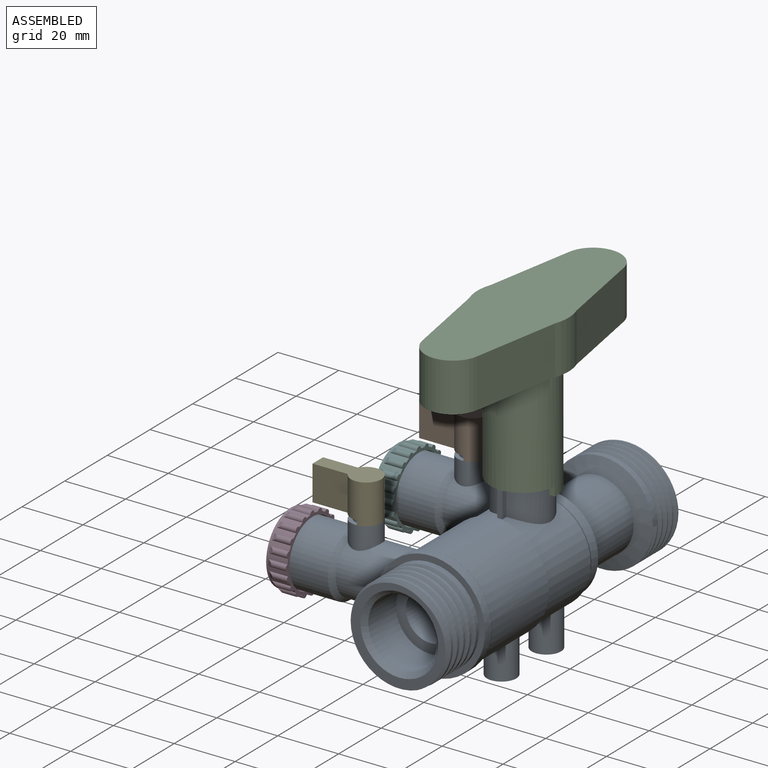
[diagram: assembled view]
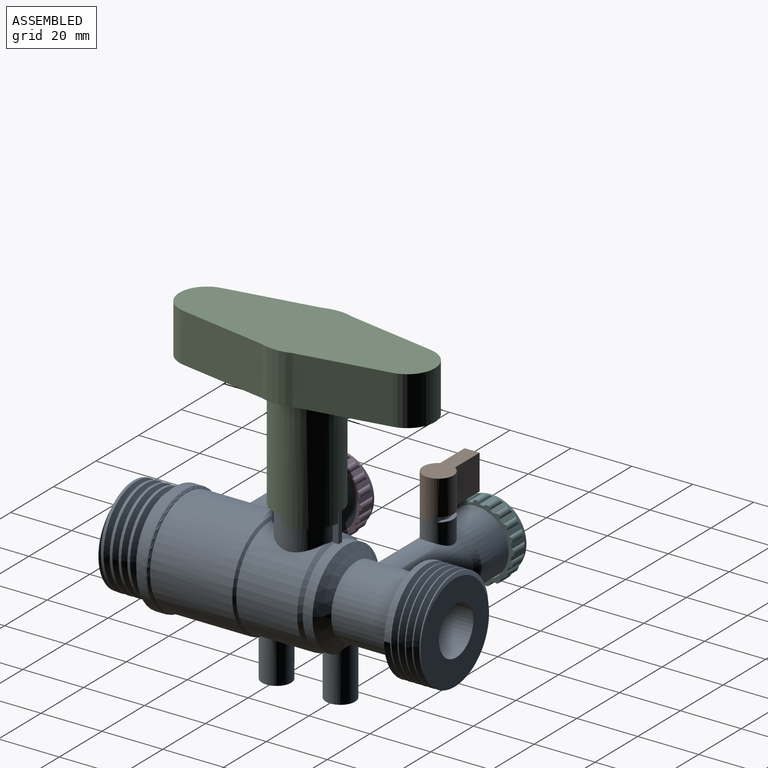
[diagram: assembled view, second angle]
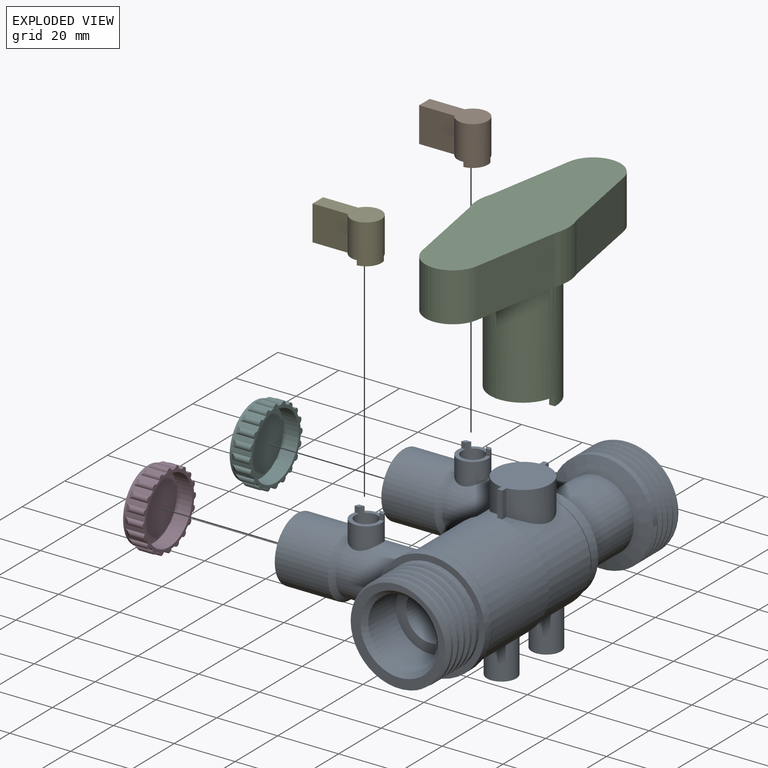
[diagram: exploded view]
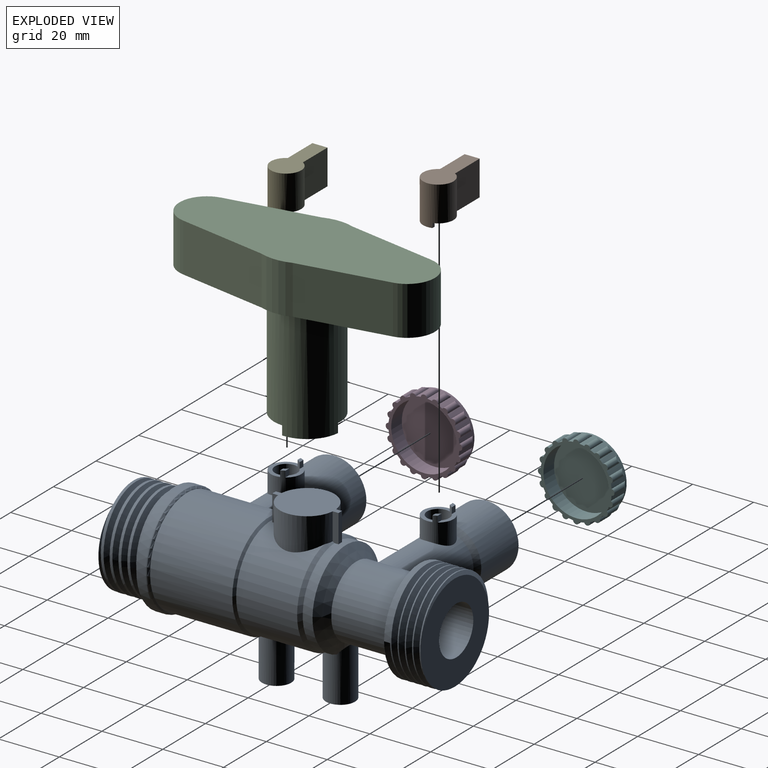
[diagram: exploded view, second angle]
ASSEMBLY  parts=6 mates=5
PART A: 80 faces, bbox 74.7x110.4x56.2 mm
  f0: cone r=15.5mm half-angle=30deg, axis (0,-1,0), area 67.1mm2, adj f1,f70,f71,f72,f73
  f1: cylinder r=16.5mm len=33mm, axis (0,-1,0), area 1745.9mm2, adj f0,f2,f6,f7,f8,f9,f10,f69
  f2: cone r=15.5mm half-angle=30deg, axis (0,-1,0), area 67.1mm2, adj f1,f3,f6,f72,f73
  f3: plane 9.27x1.92mm, normal (-1,0,0), area 17.7mm2, adj f2,f4,f5,f6,f72
  f4: plane 9.27x1.65mm, normal (0,1,0), area 15.3mm2, adj f3,f5,f71,f72
  f5: plane 21.76x18mm, normal (0,0,1), area 260.7mm2, adj f3,f4,f6,f7,f8,f9,f70,f71
  f6: cylinder r=9mm len=17.92mm, axis (0,0,-1), area 263.9mm2, adj f1,f2,f3,f5,f7
  f7: plane 8.52x1.92mm, normal (-1,0,0), area 16.3mm2, adj f1,f5,f6,f8
  f8: plane 8.52x1.65mm, normal (0,-1,0), area 14mm2, adj f1,f5,f7,f9
  f9: plane 8.52x1.92mm, normal (1,0,0), area 16.3mm2, adj f1,f5,f8,f70
  f10: cylinder r=4.82mm len=14.22mm, axis (0,0,1), area 417.4mm2, adj f1,f11,f64,f69
  f11: cylinder r=17.25mm len=34.5mm, axis (0,-1,0), area 2647.4mm2, adj f10,f12,f63,f69
  f12: cylinder r=9mm len=20.28mm, axis (1,0,0), area 998.1mm2, adj f11,f13,f24
  f13: cylinder r=5mm len=10mm, axis (0,0,-1), area 213.6mm2, adj f12,f14,f17,f18,f19,f20,f21,f22
  f14: plane 2x1.41mm, normal (0,-1,0), area 2.8mm2, adj f13,f15,f17,f23
  f15: cylinder r=3.67mm len=8.78mm, axis (0,0,-1), area 153.9mm2, adj f14,f16,f17,f18,f19,f20,f21,f22
  f16: cylinder r=9mm len=7.34mm, axis (1,0,0), area 43.3mm2, adj f15
  f17: plane 2.36x1.33mm, normal (0,0,1), area 2.1mm2, adj f13,f14,f15,f18
  f18: plane 2x1.74mm, normal (0,1,0), area 3.5mm2, adj f13,f15,f17,f19
  f19: plane 8.36x2.25mm, normal (0,0,1), area 10.2mm2, adj f13,f15,f18,f20
  f20: plane 2x1.74mm, normal (0,1,0), area 3.5mm2, adj f13,f15,f19,f21
  f21: plane 2.36x1.33mm, normal (0,0,1), area 2.1mm2, adj f13,f15,f20,f22
  f22: plane 2x1.41mm, normal (0,-1,0), area 2.8mm2, adj f13,f15,f21,f23
  f23: plane 10x6.42mm, normal (0,0,1), area 22mm2, adj f13,f14,f15,f22
  f24: cone r=10.5mm half-angle=45deg, axis (-1,0,0), area 121.3mm2, adj f12,f13,f25
  f25: cylinder r=10.5mm len=21mm, axis (1,0,0), area 1154.5mm2, adj f24,f26
  f26: plane 21x21mm, normal (-1,0,0), area 240mm2, adj f25,f27
  f27: cylinder r=5.82mm len=48.51mm, axis (1,0,0), area 1726.5mm2, adj f26,f28
  f28: cylinder r=8mm len=92.5mm, axis (0,-1,0), area 4418.8mm2, adj f27,f29,f52,f53
  f29: plane 33.34x33.32mm, normal (0,1,0), area 607mm2, adj f28,f30,f50,f51
  f30: cylinder r=16.75mm len=33.5mm, axis (0,-1,0), area 299.3mm2, adj f29,f31,f32,f50,f51
  f31: plane 2x1.73mm, normal (0,0,-1), area 1.7mm2, adj f30,f50,f51
  f32: cone r=16.75mm half-angle=70deg, axis (0,1,0), area 476.4mm2, adj f30,f33
  f33: cylinder r=11.75mm len=23.5mm, axis (0,-1,0), area 1169.1mm2, adj f32,f34,f35
  f34: cone r=10.75mm half-angle=50deg, axis (0,-1,0), area 357.7mm2, adj f33,f35,f72,f73
  f35: cylinder r=9mm len=27.45mm, axis (1,0,0), area 1303.7mm2, adj f33,f34,f36,f47,f72
  f36: cylinder r=5mm len=10mm, axis (0,0,-1), area 213.6mm2, adj f35,f37,f40,f41,f42,f43,f44,f45
  f37: plane 2x1.41mm, normal (0,-1,0), area 2.8mm2, adj f36,f38,f40,f46
  f38: cylinder r=3.67mm len=8.78mm, axis (0,0,-1), area 153.9mm2, adj f37,f39,f40,f41,f42,f43,f44,f45
  f39: cylinder r=9mm len=7.34mm, axis (1,0,0), area 43.3mm2, adj f38
  f40: plane 2.36x1.33mm, normal (0,0,1), area 2.1mm2, adj f36,f37,f38,f41
  f41: plane 2x1.74mm, normal (0,1,0), area 3.5mm2, adj f36,f38,f40,f42
  f42: plane 8.36x2.25mm, normal (0,0,1), area 10.2mm2, adj f36,f38,f41,f43
  f43: plane 2x1.74mm, normal (0,1,0), area 3.5mm2, adj f36,f38,f42,f44
  f44: plane 2.36x1.33mm, normal (0,0,1), area 2.1mm2, adj f36,f38,f43,f45
  f45: plane 2x1.41mm, normal (0,-1,0), area 2.8mm2, adj f36,f38,f44,f46
  f46: plane 10x6.42mm, normal (0,0,1), area 22mm2, adj f36,f37,f38,f45
  f47: cone r=10.5mm half-angle=45deg, axis (-1,0,0), area 121.3mm2, adj f35,f36,f48
  f48: cylinder r=10.5mm len=21mm, axis (1,0,0), area 1154.5mm2, adj f47,f49
  f49: plane 21x21mm, normal (-1,0,0), area 240mm2, adj f48,f52
  f50: bspline ~38.68x33.5mm, area 956.6mm2, adj f29,f30,f31,f51
  f51: bspline ~38.68x33.5mm, area 873.6mm2, adj f29,f30,f31,f50
  f52: cylinder r=5.82mm len=48.51mm, axis (1,0,0), area 1726.5mm2, adj f28,f49
  f53: plane 22.5x22.5mm, normal (0,-1,0), area 196.5mm2, adj f28,f54
  f54: cylinder r=11.25mm len=22.5mm, axis (0,1,0), area 918.9mm2, adj f53,f55
  f55: cone r=11.25mm half-angle=45deg, axis (0,-1,0), area 159.9mm2, adj f54,f56
  f56: plane 32.15x31.85mm, normal (0,-1,0), area 235.7mm2, adj f55,f57,f61,f62
  f57: cylinder r=16mm len=32mm, axis (0,1,0), area 528.4mm2, adj f56,f58,f59,f61,f62
  f58: plane 2x1.73mm, normal (0,0,-1), area 1.7mm2, adj f57,f61,f62
  f59: plane 36x36mm, normal (0,-1,0), area 213.6mm2, adj f57,f60
  f60: cylinder r=18mm len=36mm, axis (0,-1,0), area 342.9mm2, adj f59,f63
  f61: bspline ~36.95x32mm, area 918.2mm2, adj f56,f57,f58,f62
  f62: bspline ~36.95x32mm, area 852.5mm2, adj f56,f57,f58,f61
  f63: torus R=17mm, axis (0,1,0), area 146.9mm2, adj f11,f60
  f64: plane 9.64x9.64mm, normal (0,0,-1), area 47mm2, adj f10,f65
  f65: cylinder r=2.87mm len=13.75mm, axis (0,0,1), area 243.6mm2, adj f64,f66,f67,f68
  f66: cylinder r=16.5mm len=5.75mm, axis (0,-1,0), area 22.1mm2, adj f65,f67
  f67: cone r=16.25mm half-angle=45deg, axis (0,-1,0), area 4mm2, adj f65,f66,f68
  f68: cylinder r=17.25mm len=2.95mm, axis (0,-1,0), area 0mm2, adj f65,f67
  f69: cone r=16.25mm half-angle=45deg, axis (0,-1,0), area 103.2mm2, adj f1,f10,f11
  f70: cylinder r=9mm len=17.92mm, axis (0,0,-1), area 263.9mm2, adj f0,f1,f5,f9,f71
  f71: plane 9.27x1.92mm, normal (1,0,0), area 17.7mm2, adj f0,f4,f5,f70,f72
  f72: cylinder r=15.75mm len=31.5mm, axis (0,-1,0), area 287.3mm2, adj f0,f2,f3,f4,f34,f35,f71,f73
  f73: cylinder r=4.82mm len=17.8mm, axis (0,0,1), area 463.7mm2, adj f0,f1,f2,f34,f72,f74
  f74: plane 9.64x9.64mm, normal (0,0,-1), area 47mm2, adj f73,f75
  f75: cylinder r=2.87mm len=15.48mm, axis (0,0,1), area 260.5mm2, adj f74,f76,f77,f78,f79
  f76: cone r=10.75mm half-angle=50deg, axis (0,-1,0), area 4.9mm2, adj f75,f79
  f77: cylinder r=16.5mm len=1.98mm, axis (0,-1,0), area 0mm2, adj f75,f78
  f78: cone r=15.5mm half-angle=30deg, axis (0,-1,0), area 5.3mm2, adj f75,f77,f79
  f79: cylinder r=15.75mm len=5.75mm, axis (0,-1,0), area 17.3mm2, adj f75,f76,f78
PART B: 14 faces, bbox 20.9x10x13 mm
  f0: plane 20.7x10mm, normal (0,0,-1), area 42.7mm2, adj f1,f3,f4,f5,f6,f8,f9,f10
  f1: cylinder r=5mm len=13mm, axis (0,0,-1), area 315.2mm2, adj f0,f2,f4,f5,f11,f12,f13
  f2: plane 20.9x10mm, normal (0,0,1), area 133.4mm2, adj f1,f3,f4,f5
  f3: plane 11.5x4.94mm, normal (-1,0,0), area 56.8mm2, adj f0,f2,f4,f5
  f4: plane 11.55x11.5mm, normal (0,-1,0), area 132.9mm2, adj f0,f1,f2,f3
  f5: plane 11.55x11.5mm, normal (0,1,0), area 132.9mm2, adj f0,f1,f2,f3
  f6: cylinder r=4mm len=12mm, axis (0,0,-1), area 243.3mm2, adj f0,f7,f9,f10,f11,f12,f13
  f7: plane 18.9x8mm, normal (0,0,-1), area 82.6mm2, adj f6,f8,f9,f10
  f8: plane 10.5x2.94mm, normal (1,0,0), area 30.9mm2, adj f0,f7,f9,f10
  f9: plane 11.18x10.5mm, normal (0,1,0), area 117.4mm2, adj f0,f6,f7,f8
  f10: plane 11.18x10.5mm, normal (0,-1,0), area 117.4mm2, adj f0,f6,f7,f8
  f11: plane 1.5x1mm, normal (-1,0,0), area 1.5mm2, adj f0,f1,f6,f13
  f12: plane 1.5x1.05mm, normal (0,1,0), area 1.6mm2, adj f0,f1,f6,f13
  f13: plane 6.4x4.61mm, normal (0,0,-1), area 8.1mm2, adj f1,f6,f11,f12
PART C: 16 faces, bbox 30x83.9x54 mm
  f0: plane 21.76x21.74mm, normal (0,0,-1), area 343.3mm2, adj f2,f12,f13,f14
  f1: cylinder r=15mm len=16mm, axis (0,0,1), area 167.6mm2, adj f6,f7,f8,f9
  f2: cylinder r=10.88mm len=38mm, axis (0,0,-1), area 2442.7mm2, adj f0,f7,f12,f14,f15
  f3: cylinder r=15mm len=16mm, axis (0,0,1), area 167.6mm2, adj f4,f7,f8,f11
  f4: plane 29.34x16mm, normal (0.98,0.17,0), area 476.6mm2, adj f3,f5,f7,f8
  f5: cylinder r=9.06mm len=17.84mm, axis (0,0,1), area 404.8mm2, adj f4,f6,f7,f8
  f6: plane 29.34x16mm, normal (-0.98,0.17,0), area 476.6mm2, adj f1,f5,f7,f8
  f7: plane 83.91x30mm, normal (0,0,-1), area 1481.5mm2, adj f1,f2,f3,f4,f5,f6,f9,f10
  f8: plane 83.91x30mm, normal (0,0,1), area 1853.4mm2, adj f1,f3,f4,f5,f6,f9,f10,f11
  f9: plane 29.34x16mm, normal (-0.98,-0.17,0), area 476.6mm2, adj f1,f7,f8,f10
  f10: cylinder r=9.06mm len=17.84mm, axis (0,0,1), area 404.8mm2, adj f7,f8,f9,f11
  f11: plane 29.34x16mm, normal (0.98,-0.17,0), area 476.6mm2, adj f3,f7,f8,f10
  f12: plane 3x1.88mm, normal (0,-1,0), area 5.7mm2, adj f0,f2,f13,f15
  f13: cylinder r=9mm len=9.54mm, axis (0,0,1), area 41.2mm2, adj f0,f12,f14,f15
  f14: plane 3x1.89mm, normal (-1,0,0), area 5.7mm2, adj f0,f2,f13,f15
  f15: plane 11.43x9.88mm, normal (0,0,-1), area 28.6mm2, adj f2,f12,f13,f14
PART D: 85 faces, bbox 7x25.1x25.1 mm
  f0: cylinder r=11.67mm len=23.35mm, axis (1,0,0), area 257.5mm2, adj f1,f3,f6,f7,f8,f10,f11,f12
  f1: plane 23.35x23.35mm, normal (-1,0,0), area 428.1mm2, adj f0
  f2: cylinder r=10.77mm len=21.54mm, axis (-1,0,0), area 338.4mm2, adj f3,f4
  f3: plane 25.13x25.13mm, normal (1,0,0), area 92mm2, adj f0,f2,f5,f7,f8,f9,f10,f11
  f4: plane 21.54x21.54mm, normal (1,0,0), area 364.4mm2, adj f2
  f5: cylinder r=12.56mm len=4.74mm, axis (-1,0,0), area 0.2mm2, adj f3,f6,f7,f8
  f6: cone r=11.56mm half-angle=30deg, axis (1,0,0), area 2.8mm2, adj f0,f5,f7,f8
  f7: cylinder r=1mm len=6.28mm, axis (-1,0,0), area 8mm2, adj f0,f3,f5,f6
  f8: cylinder r=1mm len=6.28mm, axis (-1,0,0), area 8mm2, adj f0,f3,f5,f6
  f9: cylinder r=12.56mm len=4.74mm, axis (-1,0,0), area 0.2mm2, adj f3,f10,f11,f12
  f10: cylinder r=1mm len=6.28mm, axis (-1,0,0), area 8mm2, adj f0,f3,f9,f12
  f11: cylinder r=1mm len=6.28mm, axis (-1,0,0), area 8mm2, adj f0,f3,f9,f12
  f12: cone r=11.56mm half-angle=30deg, axis (1,0,0), area 2.8mm2, adj f0,f9,f10,f11
  f13: cylinder r=12.56mm len=4.74mm, axis (-1,0,0), area 0.2mm2, adj f3,f14,f15,f16
  f14: cylinder r=1mm len=6.28mm, axis (-1,0,0), area 8mm2, adj f0,f3,f13,f16
  f15: cylinder r=1mm len=6.28mm, axis (-1,0,0), area 8mm2, adj f0,f3,f13,f16
  f16: cone r=11.56mm half-angle=30deg, axis (1,0,0), area 2.8mm2, adj f0,f13,f14,f15
  f17: cylinder r=12.56mm len=4.74mm, axis (-1,0,0), area 0.2mm2, adj f3,f18,f19,f20
  f18: cylinder r=1mm len=6.28mm, axis (-1,0,0), area 8mm2, adj f0,f3,f17,f20
  f19: cylinder r=1mm len=6.28mm, axis (-1,0,0), area 8mm2, adj f0,f3,f17,f20
  f20: cone r=11.56mm half-angle=30deg, axis (1,0,0), area 2.8mm2, adj f0,f17,f18,f19
  f21: cylinder r=12.56mm len=4.74mm, axis (-1,0,0), area 0.2mm2, adj f3,f22,f23,f24
  f22: cylinder r=1mm len=6.28mm, axis (-1,0,0), area 8mm2, adj f0,f3,f21,f24
  f23: cylinder r=1mm len=6.28mm, axis (-1,0,0), area 8mm2, adj f0,f3,f21,f24
  f24: cone r=11.56mm half-angle=30deg, axis (1,0,0), area 2.8mm2, adj f0,f21,f22,f23
  f25: cylinder r=12.56mm len=4.74mm, axis (-1,0,0), area 0.2mm2, adj f3,f26,f27,f28
  f26: cylinder r=1mm len=6.28mm, axis (-1,0,0), area 8mm2, adj f0,f3,f25,f28
  f27: cylinder r=1mm len=6.28mm, axis (-1,0,0), area 8mm2, adj f0,f3,f25,f28
  f28: cone r=11.56mm half-angle=30deg, axis (1,0,0), area 2.8mm2, adj f0,f25,f26,f27
  f29: cylinder r=12.56mm len=4.74mm, axis (-1,0,0), area 0.2mm2, adj f3,f30,f31,f32
  f30: cylinder r=1mm len=6.28mm, axis (-1,0,0), area 8mm2, adj f0,f3,f29,f32
  f31: cylinder r=1mm len=6.28mm, axis (-1,0,0), area 8mm2, adj f0,f3,f29,f32
  f32: cone r=11.56mm half-angle=30deg, axis (1,0,0), area 2.8mm2, adj f0,f29,f30,f31
  f33: cylinder r=12.56mm len=4.74mm, axis (-1,0,0), area 0.2mm2, adj f3,f34,f35,f36
  f34: cylinder r=1mm len=6.28mm, axis (-1,0,0), area 8mm2, adj f0,f3,f33,f36
  f35: cylinder r=1mm len=6.28mm, axis (-1,0,0), area 8mm2, adj f0,f3,f33,f36
  f36: cone r=11.56mm half-angle=30deg, axis (1,0,0), area 2.8mm2, adj f0,f33,f34,f35
  f37: cylinder r=12.56mm len=4.74mm, axis (-1,0,0), area 0.2mm2, adj f3,f38,f39,f40
  f38: cylinder r=1mm len=6.28mm, axis (-1,0,0), area 8mm2, adj f0,f3,f37,f40
  f39: cylinder r=1mm len=6.28mm, axis (-1,0,0), area 8mm2, adj f0,f3,f37,f40
  f40: cone r=11.56mm half-angle=30deg, axis (1,0,0), area 2.8mm2, adj f0,f37,f38,f39
  f41: cylinder r=12.56mm len=4.74mm, axis (-1,0,0), area 0.2mm2, adj f3,f42,f43,f44
  f42: cylinder r=1mm len=6.28mm, axis (-1,0,0), area 8mm2, adj f0,f3,f41,f44
  f43: cylinder r=1mm len=6.28mm, axis (-1,0,0), area 8mm2, adj f0,f3,f41,f44
  f44: cone r=11.56mm half-angle=30deg, axis (1,0,0), area 2.8mm2, adj f0,f41,f42,f43
  f45: cylinder r=12.56mm len=4.74mm, axis (-1,0,0), area 0.2mm2, adj f3,f46,f47,f48
  f46: cone r=11.56mm half-angle=30deg, axis (1,0,0), area 2.8mm2, adj f0,f45,f47,f48
  f47: cylinder r=1mm len=6.28mm, axis (-1,0,0), area 8mm2, adj f0,f3,f45,f46
  f48: cylinder r=1mm len=6.28mm, axis (-1,0,0), area 8mm2, adj f0,f3,f45,f46
  f49: cylinder r=12.56mm len=4.74mm, axis (-1,0,0), area 0.2mm2, adj f3,f50,f51,f52
  f50: cone r=11.56mm half-angle=30deg, axis (1,0,0), area 2.8mm2, adj f0,f49,f51,f52
  f51: cylinder r=1mm len=6.28mm, axis (-1,0,0), area 8mm2, adj f0,f3,f49,f50
  f52: cylinder r=1mm len=6.28mm, axis (-1,0,0), area 8mm2, adj f0,f3,f49,f50
  f53: cylinder r=12.56mm len=4.74mm, axis (-1,0,0), area 0.2mm2, adj f3,f54,f55,f56
  f54: cone r=11.56mm half-angle=30deg, axis (1,0,0), area 2.8mm2, adj f0,f53,f55,f56
  f55: cylinder r=1mm len=6.28mm, axis (-1,0,0), area 8mm2, adj f0,f3,f53,f54
  f56: cylinder r=1mm len=6.28mm, axis (-1,0,0), area 8mm2, adj f0,f3,f53,f54
  f57: cylinder r=12.56mm len=4.74mm, axis (-1,0,0), area 0.2mm2, adj f3,f58,f59,f60
  f58: cone r=11.56mm half-angle=30deg, axis (1,0,0), area 2.8mm2, adj f0,f57,f59,f60
  f59: cylinder r=1mm len=6.28mm, axis (-1,0,0), area 8mm2, adj f0,f3,f57,f58
  f60: cylinder r=1mm len=6.28mm, axis (-1,0,0), area 8mm2, adj f0,f3,f57,f58
  f61: cylinder r=12.56mm len=4.74mm, axis (-1,0,0), area 0.2mm2, adj f3,f62,f63,f64
  f62: cone r=11.56mm half-angle=30deg, axis (1,0,0), area 2.8mm2, adj f0,f61,f63,f64
  f63: cylinder r=1mm len=6.28mm, axis (-1,0,0), area 8mm2, adj f0,f3,f61,f62
  f64: cylinder r=1mm len=6.28mm, axis (-1,0,0), area 8mm2, adj f0,f3,f61,f62
  f65: cylinder r=12.56mm len=4.74mm, axis (-1,0,0), area 0.2mm2, adj f3,f66,f67,f68
  f66: cone r=11.56mm half-angle=30deg, axis (1,0,0), area 2.8mm2, adj f0,f65,f67,f68
  f67: cylinder r=1mm len=6.28mm, axis (-1,0,0), area 8mm2, adj f0,f3,f65,f66
  f68: cylinder r=1mm len=6.28mm, axis (-1,0,0), area 8mm2, adj f0,f3,f65,f66
  f69: cylinder r=12.56mm len=4.74mm, axis (-1,0,0), area 0.2mm2, adj f3,f70,f71,f72
  f70: cone r=11.56mm half-angle=30deg, axis (1,0,0), area 2.8mm2, adj f0,f69,f71,f72
  f71: cylinder r=1mm len=6.28mm, axis (-1,0,0), area 8mm2, adj f0,f3,f69,f70
  f72: cylinder r=1mm len=6.28mm, axis (-1,0,0), area 8mm2, adj f0,f3,f69,f70
  f73: cylinder r=12.56mm len=4.74mm, axis (-1,0,0), area 0.2mm2, adj f3,f74,f75,f76
  f74: cone r=11.56mm half-angle=30deg, axis (1,0,0), area 2.8mm2, adj f0,f73,f75,f76
  f75: cylinder r=1mm len=6.28mm, axis (-1,0,0), area 8mm2, adj f0,f3,f73,f74
  f76: cylinder r=1mm len=6.28mm, axis (-1,0,0), area 8mm2, adj f0,f3,f73,f74
  f77: cylinder r=12.56mm len=4.74mm, axis (-1,0,0), area 0.2mm2, adj f3,f78,f79,f80
  f78: cone r=11.56mm half-angle=30deg, axis (1,0,0), area 2.8mm2, adj f0,f77,f79,f80
  f79: cylinder r=1mm len=6.28mm, axis (-1,0,0), area 8mm2, adj f0,f3,f77,f78
  f80: cylinder r=1mm len=6.28mm, axis (-1,0,0), area 8mm2, adj f0,f3,f77,f78
  f81: cylinder r=12.56mm len=4.74mm, axis (-1,0,0), area 0.2mm2, adj f3,f82,f83,f84
  f82: cone r=11.56mm half-angle=30deg, axis (1,0,0), area 2.8mm2, adj f0,f81,f83,f84
  f83: cylinder r=1mm len=6.28mm, axis (-1,0,0), area 8mm2, adj f0,f3,f81,f82
  f84: cylinder r=1mm len=6.28mm, axis (-1,0,0), area 8mm2, adj f0,f3,f81,f82
PART E: same geometry as B
PART F: 85 faces, bbox 7x25.1x25.1 mm
  f0: cylinder r=11.67mm len=23.35mm, axis (1,0,0), area 257.5mm2, adj f1,f3,f6,f7,f8,f10,f11,f12
  f1: plane 23.35x23.35mm, normal (-1,0,0), area 428.1mm2, adj f0
  f2: cylinder r=10.77mm len=21.54mm, axis (-1,0,0), area 338.4mm2, adj f3,f4
  f3: plane 25.13x25.13mm, normal (1,0,0), area 92mm2, adj f0,f2,f5,f7,f8,f9,f10,f11
  f4: plane 21.54x21.54mm, normal (1,0,0), area 364.4mm2, adj f2
  f5: cylinder r=12.56mm len=4.74mm, axis (-1,0,0), area 0.2mm2, adj f3,f6,f7,f8
  f6: cone r=11.56mm half-angle=30deg, axis (1,0,0), area 2.8mm2, adj f0,f5,f7,f8
  f7: cylinder r=1mm len=6.28mm, axis (-1,0,0), area 8mm2, adj f0,f3,f5,f6
  f8: cylinder r=1mm len=6.28mm, axis (-1,0,0), area 8mm2, adj f0,f3,f5,f6
  f9: cylinder r=12.56mm len=4.74mm, axis (-1,0,0), area 0.2mm2, adj f3,f10,f11,f12
  f10: cylinder r=1mm len=6.28mm, axis (-1,0,0), area 8mm2, adj f0,f3,f9,f12
  f11: cylinder r=1mm len=6.28mm, axis (-1,0,0), area 8mm2, adj f0,f3,f9,f12
  f12: cone r=11.56mm half-angle=30deg, axis (1,0,0), area 2.8mm2, adj f0,f9,f10,f11
  f13: cylinder r=12.56mm len=4.74mm, axis (-1,0,0), area 0.2mm2, adj f3,f14,f15,f16
  f14: cylinder r=1mm len=6.28mm, axis (-1,0,0), area 8mm2, adj f0,f3,f13,f16
  f15: cylinder r=1mm len=6.28mm, axis (-1,0,0), area 8mm2, adj f0,f3,f13,f16
  f16: cone r=11.56mm half-angle=30deg, axis (1,0,0), area 2.8mm2, adj f0,f13,f14,f15
  f17: cylinder r=12.56mm len=4.74mm, axis (-1,0,0), area 0.2mm2, adj f3,f18,f19,f20
  f18: cylinder r=1mm len=6.28mm, axis (-1,0,0), area 8mm2, adj f0,f3,f17,f20
  f19: cylinder r=1mm len=6.28mm, axis (-1,0,0), area 8mm2, adj f0,f3,f17,f20
  f20: cone r=11.56mm half-angle=30deg, axis (1,0,0), area 2.8mm2, adj f0,f17,f18,f19
  f21: cylinder r=12.56mm len=4.74mm, axis (-1,0,0), area 0.2mm2, adj f3,f22,f23,f24
  f22: cylinder r=1mm len=6.28mm, axis (-1,0,0), area 8mm2, adj f0,f3,f21,f24
  f23: cylinder r=1mm len=6.28mm, axis (-1,0,0), area 8mm2, adj f0,f3,f21,f24
  f24: cone r=11.56mm half-angle=30deg, axis (1,0,0), area 2.8mm2, adj f0,f21,f22,f23
  f25: cylinder r=12.56mm len=4.74mm, axis (-1,0,0), area 0.2mm2, adj f3,f26,f27,f28
  f26: cylinder r=1mm len=6.28mm, axis (-1,0,0), area 8mm2, adj f0,f3,f25,f28
  f27: cylinder r=1mm len=6.28mm, axis (-1,0,0), area 8mm2, adj f0,f3,f25,f28
  f28: cone r=11.56mm half-angle=30deg, axis (1,0,0), area 2.8mm2, adj f0,f25,f26,f27
  f29: cylinder r=12.56mm len=4.74mm, axis (-1,0,0), area 0.2mm2, adj f3,f30,f31,f32
  f30: cylinder r=1mm len=6.28mm, axis (-1,0,0), area 8mm2, adj f0,f3,f29,f32
  f31: cylinder r=1mm len=6.28mm, axis (-1,0,0), area 8mm2, adj f0,f3,f29,f32
  f32: cone r=11.56mm half-angle=30deg, axis (1,0,0), area 2.8mm2, adj f0,f29,f30,f31
  f33: cylinder r=12.56mm len=4.74mm, axis (-1,0,0), area 0.2mm2, adj f3,f34,f35,f36
  f34: cylinder r=1mm len=6.28mm, axis (-1,0,0), area 8mm2, adj f0,f3,f33,f36
  f35: cylinder r=1mm len=6.28mm, axis (-1,0,0), area 8mm2, adj f0,f3,f33,f36
  f36: cone r=11.56mm half-angle=30deg, axis (1,0,0), area 2.8mm2, adj f0,f33,f34,f35
  f37: cylinder r=12.56mm len=4.74mm, axis (-1,0,0), area 0.2mm2, adj f3,f38,f39,f40
  f38: cylinder r=1mm len=6.28mm, axis (-1,0,0), area 8mm2, adj f0,f3,f37,f40
  f39: cylinder r=1mm len=6.28mm, axis (-1,0,0), area 8mm2, adj f0,f3,f37,f40
  f40: cone r=11.56mm half-angle=30deg, axis (1,0,0), area 2.8mm2, adj f0,f37,f38,f39
  f41: cylinder r=12.56mm len=4.74mm, axis (-1,0,0), area 0.2mm2, adj f3,f42,f43,f44
  f42: cylinder r=1mm len=6.28mm, axis (-1,0,0), area 8mm2, adj f0,f3,f41,f44
  f43: cylinder r=1mm len=6.28mm, axis (-1,0,0), area 8mm2, adj f0,f3,f41,f44
  f44: cone r=11.56mm half-angle=30deg, axis (1,0,0), area 2.8mm2, adj f0,f41,f42,f43
  f45: cylinder r=12.56mm len=4.74mm, axis (-1,0,0), area 0.2mm2, adj f3,f46,f47,f48
  f46: cone r=11.56mm half-angle=30deg, axis (1,0,0), area 2.8mm2, adj f0,f45,f47,f48
  f47: cylinder r=1mm len=6.28mm, axis (-1,0,0), area 8mm2, adj f0,f3,f45,f46
  f48: cylinder r=1mm len=6.28mm, axis (-1,0,0), area 8mm2, adj f0,f3,f45,f46
  f49: cylinder r=12.56mm len=4.74mm, axis (-1,0,0), area 0.2mm2, adj f3,f50,f51,f52
  f50: cone r=11.56mm half-angle=30deg, axis (1,0,0), area 2.8mm2, adj f0,f49,f51,f52
  f51: cylinder r=1mm len=6.28mm, axis (-1,0,0), area 8mm2, adj f0,f3,f49,f50
  f52: cylinder r=1mm len=6.28mm, axis (-1,0,0), area 8mm2, adj f0,f3,f49,f50
  f53: cylinder r=12.56mm len=4.74mm, axis (-1,0,0), area 0.2mm2, adj f3,f54,f55,f56
  f54: cone r=11.56mm half-angle=30deg, axis (1,0,0), area 2.8mm2, adj f0,f53,f55,f56
  f55: cylinder r=1mm len=6.28mm, axis (-1,0,0), area 8mm2, adj f0,f3,f53,f54
  f56: cylinder r=1mm len=6.28mm, axis (-1,0,0), area 8mm2, adj f0,f3,f53,f54
  f57: cylinder r=12.56mm len=4.74mm, axis (-1,0,0), area 0.2mm2, adj f3,f58,f59,f60
  f58: cone r=11.56mm half-angle=30deg, axis (1,0,0), area 2.8mm2, adj f0,f57,f59,f60
  f59: cylinder r=1mm len=6.28mm, axis (-1,0,0), area 8mm2, adj f0,f3,f57,f58
  f60: cylinder r=1mm len=6.28mm, axis (-1,0,0), area 8mm2, adj f0,f3,f57,f58
  f61: cylinder r=12.56mm len=4.74mm, axis (-1,0,0), area 0.2mm2, adj f3,f62,f63,f64
  f62: cone r=11.56mm half-angle=30deg, axis (1,0,0), area 2.8mm2, adj f0,f61,f63,f64
  f63: cylinder r=1mm len=6.28mm, axis (-1,0,0), area 8mm2, adj f0,f3,f61,f62
  f64: cylinder r=1mm len=6.28mm, axis (-1,0,0), area 8mm2, adj f0,f3,f61,f62
  f65: cylinder r=12.56mm len=4.74mm, axis (-1,0,0), area 0.2mm2, adj f3,f66,f67,f68
  f66: cone r=11.56mm half-angle=30deg, axis (1,0,0), area 2.8mm2, adj f0,f65,f67,f68
  f67: cylinder r=1mm len=6.28mm, axis (-1,0,0), area 8mm2, adj f0,f3,f65,f66
  f68: cylinder r=1mm len=6.28mm, axis (-1,0,0), area 8mm2, adj f0,f3,f65,f66
  f69: cylinder r=12.56mm len=4.74mm, axis (-1,0,0), area 0.2mm2, adj f3,f70,f71,f72
  f70: cone r=11.56mm half-angle=30deg, axis (1,0,0), area 2.8mm2, adj f0,f69,f71,f72
  f71: cylinder r=1mm len=6.28mm, axis (-1,0,0), area 8mm2, adj f0,f3,f69,f70
  f72: cylinder r=1mm len=6.28mm, axis (-1,0,0), area 8mm2, adj f0,f3,f69,f70
  f73: cylinder r=12.56mm len=4.74mm, axis (-1,0,0), area 0.2mm2, adj f3,f74,f75,f76
  f74: cone r=11.56mm half-angle=30deg, axis (1,0,0), area 2.8mm2, adj f0,f73,f75,f76
  f75: cylinder r=1mm len=6.28mm, axis (-1,0,0), area 8mm2, adj f0,f3,f73,f74
  f76: cylinder r=1mm len=6.28mm, axis (-1,0,0), area 8mm2, adj f0,f3,f73,f74
  f77: cylinder r=12.56mm len=4.74mm, axis (-1,0,0), area 0.2mm2, adj f3,f78,f79,f80
  f78: cone r=11.56mm half-angle=30deg, axis (1,0,0), area 2.8mm2, adj f0,f77,f79,f80
  f79: cylinder r=1mm len=6.28mm, axis (-1,0,0), area 8mm2, adj f0,f3,f77,f78
  f80: cylinder r=1mm len=6.28mm, axis (-1,0,0), area 8mm2, adj f0,f3,f77,f78
  f81: cylinder r=12.56mm len=4.74mm, axis (-1,0,0), area 0.2mm2, adj f3,f82,f83,f84
  f82: cone r=11.56mm half-angle=30deg, axis (1,0,0), area 2.8mm2, adj f0,f81,f83,f84
  f83: cylinder r=1mm len=6.28mm, axis (-1,0,0), area 8mm2, adj f0,f3,f81,f82
  f84: cylinder r=1mm len=6.28mm, axis (-1,0,0), area 8mm2, adj f0,f3,f81,f82
PLACE A t=(29.91,48.84,-12.97)mm
PLACE B t=(29.91,98.84,-13.47)mm
PLACE C t=(29.91,48.84,-12.97)mm
PLACE D t=(29.91,48.84,-12.97)mm
PLACE E t=(29.91,48.84,-13.47)mm
PLACE F t=(29.91,48.84,-12.97)mm
MATE fastened B.f1 <-> A.f36  axis (0,0,-1) through (-1.39,113.5,2.03)mm
MATE fastened E.f1 <-> A.f13  axis (0,0,-1) through (-1.39,63.5,2.03)mm
MATE fastened F.f0 <-> A.f35  axis (1,0,0) through (-24.09,113.5,-12.97)mm
MATE fastened D.f0 <-> A.f12  axis (1,0,0) through (-24.09,63.5,-12.97)mm
MATE revolute C.f1 <-> A.f6  axis (0,0,-1) through (29.91,92.35,12.03)mm
